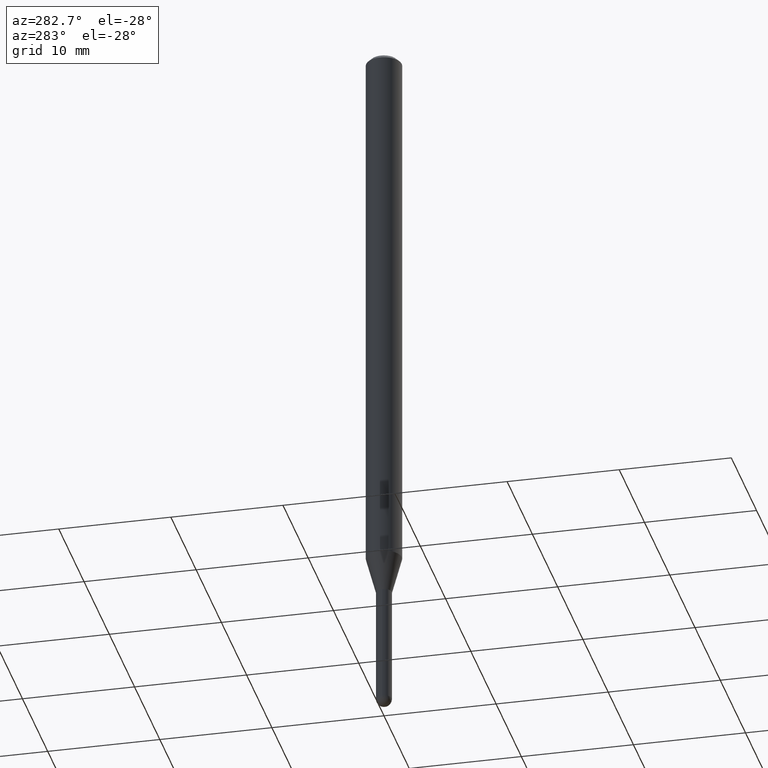
[diagram: clean part render]
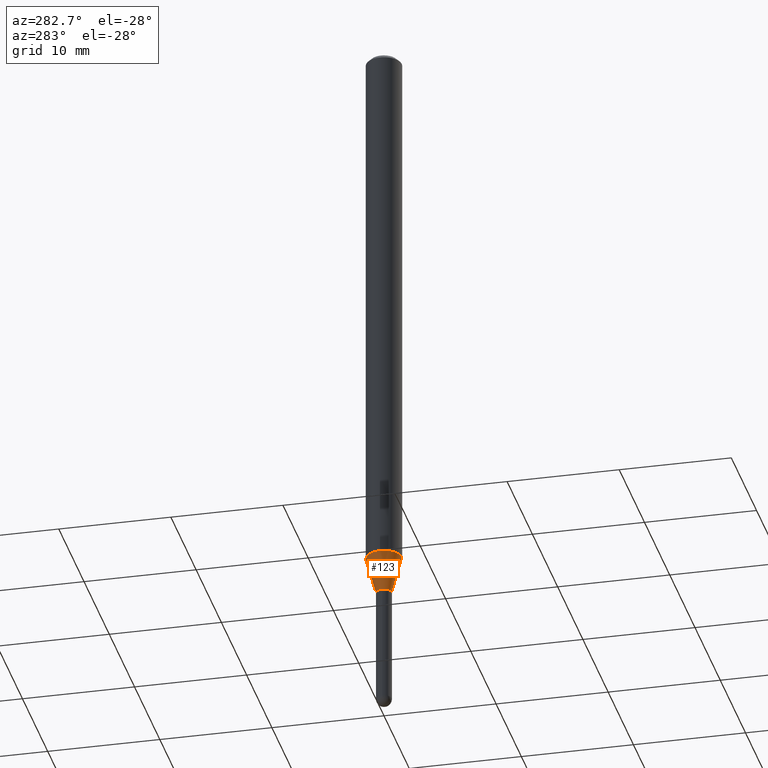
[diagram: same view with one face highlighted and labeled with its STEP entity id]
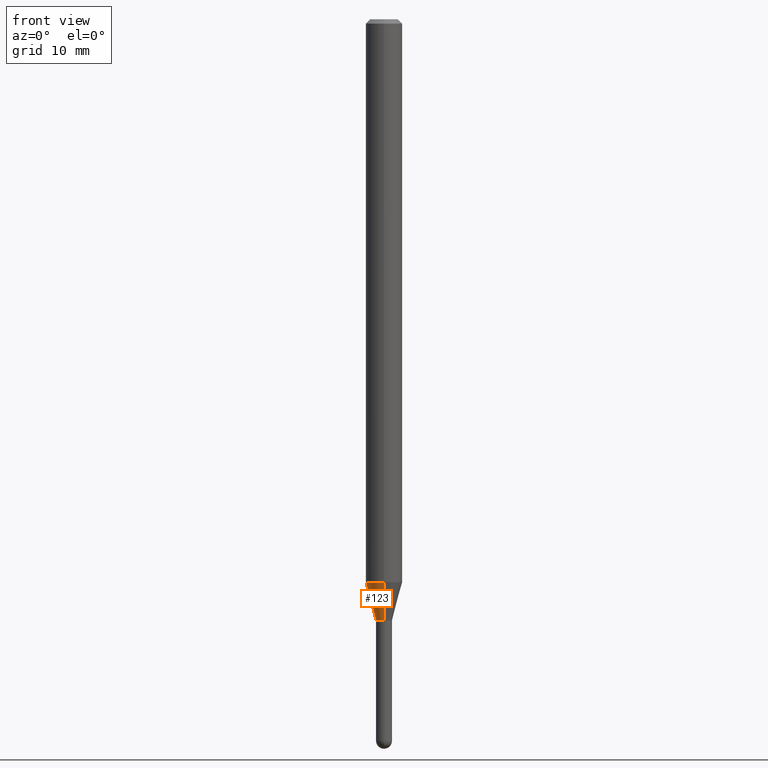
[diagram: same view with one face highlighted and labeled with its STEP entity id]
A machine part, auxiliary view. The second image highlights one B-rep face of the part: STEP entity #123.
A second angle (front view) of the same face is appended — the face is thin or edge-on in the first view.
In plain terms, the highlighted conical surface has half-angle 15 deg.
Its self-contained STEP definition (entity closure, byte-faithful):
#80 = CONICAL_SURFACE ( 'NONE', #397, 0.02750000000000019790, 0.2617993877991579010 ) ;
#82 = VERTEX_POINT ( 'NONE', #226 ) ;
#90 = ORIENTED_EDGE ( 'NONE', *, *, #200, .T. ) ;
#96 = LINE ( 'NONE', #263, #136 ) ;
#123 = ADVANCED_FACE ( 'NONE', ( #148 ), #80, .T. ) ;
#136 = VECTOR ( 'NONE', #216, 39.37007874015748143 ) ;
#137 = DIRECTION ( 'NONE',  ( -2.445457341332455997E-29, 3.491497757164723116E-15, 1.000000000000000000 ) ) ;
#140 = DIRECTION ( 'NONE',  ( -6.982962677686265922E-15, -1.000000000000000000, 4.370956789862821150E-15 ) ) ;
#141 = DIRECTION ( 'NONE',  ( -2.445457341332455997E-29, 3.491497757164723116E-15, 1.000000000000000000 ) ) ;
#142 = CARTESIAN_POINT ( 'NONE',  ( -1.920314736363233118E-16, -0.02750000000000739006, -2.060000000000000053 ) ) ;
#146 = DIRECTION ( 'NONE',  ( -6.982962677686265922E-15, -1.000000000000000000, 0.000000000000000000 ) ) ;
#148 = FACE_OUTER_BOUND ( 'NONE', #400, .T. ) ;
#167 = ORIENTED_EDGE ( 'NONE', *, *, #338, .T. ) ;
#171 = CIRCLE ( 'NONE', #229, 0.06250000000000000000 ) ;
#190 = DIRECTION ( 'NONE',  ( -2.445457341332455997E-29, 3.491497757164723116E-15, 1.000000000000000000 ) ) ;
#192 = DIRECTION ( 'NONE',  ( -1.807323732225381810E-15, -0.2588190451025255689, 0.9659258262890669799 ) ) ;
#200 = EDGE_CURVE ( 'NONE', #82, #391, #399, .T. ) ;
#204 = CARTESIAN_POINT ( 'NONE',  ( 5.037642123144859404E-29, -7.192485379759330660E-15, -2.060000000000000053 ) ) ;
#207 = LINE ( 'NONE', #248, #307 ) ;
#216 = DIRECTION ( 'NONE',  ( 1.839019923739652775E-15, 0.2588190451025323413, 0.9659258262890650926 ) ) ;
#226 = CARTESIAN_POINT ( 'NONE',  ( 3.197442310920946221E-16, 0.02749999999999300573, -2.060000000000000053 ) ) ;
#229 = AXIS2_PLACEMENT_3D ( 'NONE', #497, #137, #140 ) ;
#241 = VERTEX_POINT ( 'NONE', #320 ) ;
#248 = CARTESIAN_POINT ( 'NONE',  ( -1.920314736363233118E-16, -0.02750000000000739006, -2.060000000000000053 ) ) ;
#249 = ORIENTED_EDGE ( 'NONE', *, *, #465, .F. ) ;
#257 = CARTESIAN_POINT ( 'NONE',  ( 4.440892098501095534E-16, 0.06249999999999324846, -1.929378221735094767 ) ) ;
#263 = CARTESIAN_POINT ( 'NONE',  ( 1.953992523340792964E-16, 0.02749999999999300573, -2.060000000000000053 ) ) ;
#305 = CARTESIAN_POINT ( 'NONE',  ( 5.037642123144859404E-29, -7.192485379759330660E-15, -2.060000000000000053 ) ) ;
#307 = VECTOR ( 'NONE', #192, 39.37007874015748854 ) ;
#320 = CARTESIAN_POINT ( 'NONE',  ( -4.364351673553446829E-16, -0.06250000000000677236, -1.929378221735094323 ) ) ;
#331 = ORIENTED_EDGE ( 'NONE', *, *, #363, .F. ) ;
#338 = EDGE_CURVE ( 'NONE', #391, #241, #207, .T. ) ;
#363 = EDGE_CURVE ( 'NONE', #388, #241, #171, .T. ) ;
#373 = AXIS2_PLACEMENT_3D ( 'NONE', #204, #190, #383 ) ;
#383 = DIRECTION ( 'NONE',  ( -6.982962677686265922E-15, -1.000000000000000000, 0.000000000000000000 ) ) ;
#388 = VERTEX_POINT ( 'NONE', #257 ) ;
#391 = VERTEX_POINT ( 'NONE', #142 ) ;
#397 = AXIS2_PLACEMENT_3D ( 'NONE', #305, #141, #146 ) ;
#399 = CIRCLE ( 'NONE', #373, 0.02750000000000019790 ) ;
#400 = EDGE_LOOP ( 'NONE', ( #249, #90, #167, #331 ) ) ;
#465 = EDGE_CURVE ( 'NONE', #82, #388, #96, .T. ) ;
#497 = CARTESIAN_POINT ( 'NONE',  ( 4.718212136549045981E-29, -6.736419733910545190E-15, -1.929378221735094545 ) ) ;